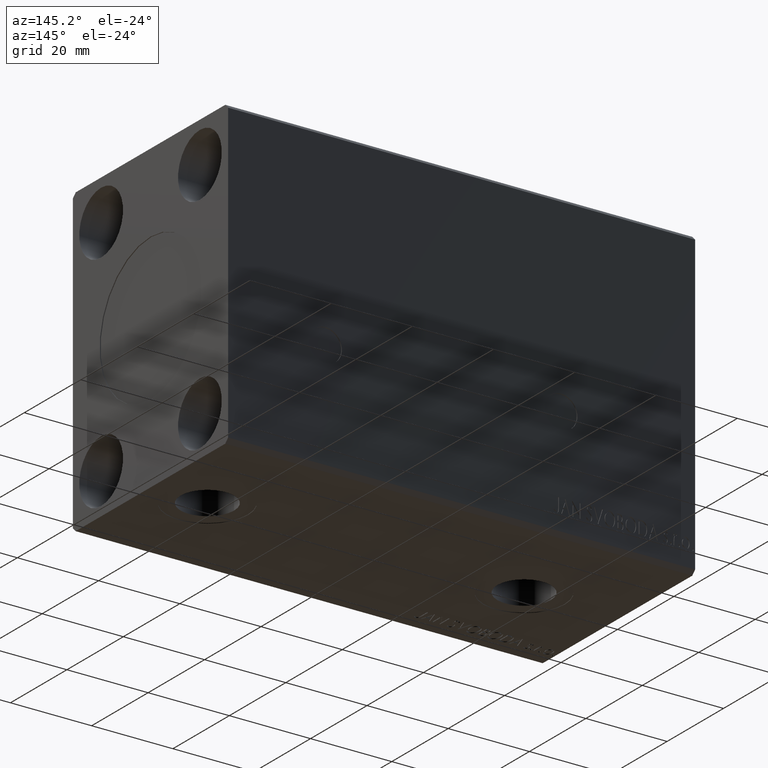
[diagram: clean part render]
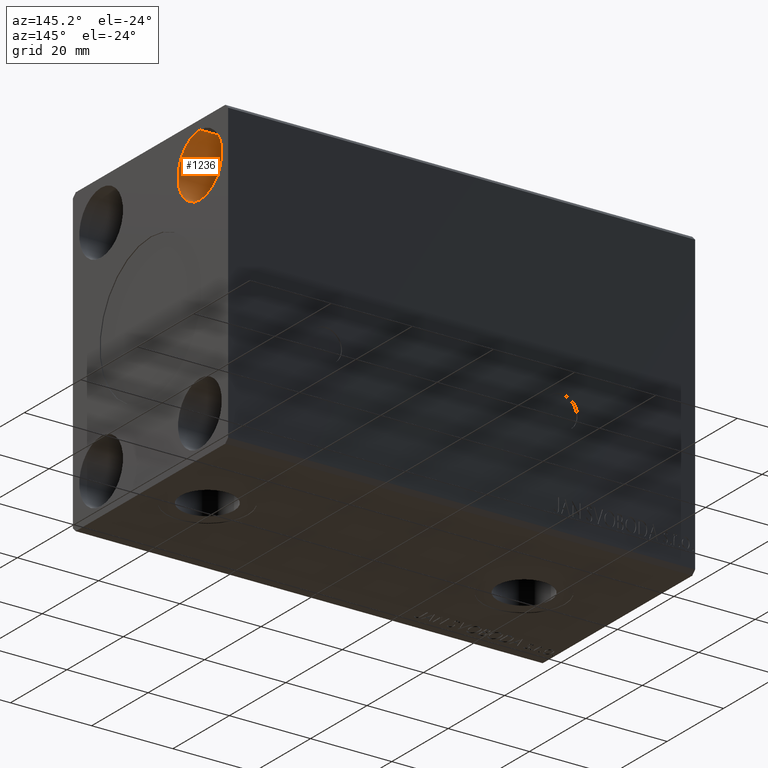
[diagram: same view with one face highlighted and labeled with its STEP entity id]
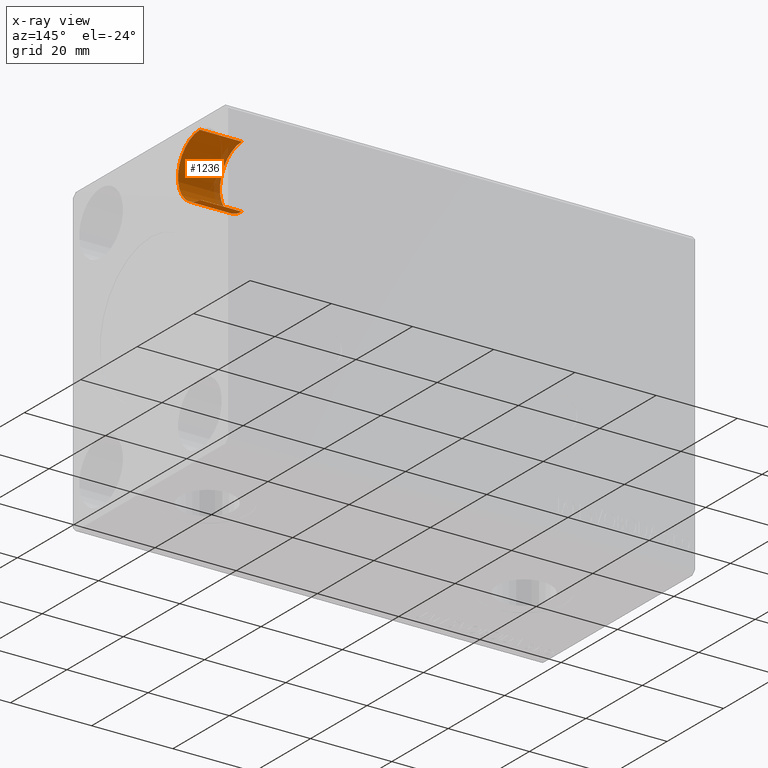
[diagram: x-ray of the same camera — body ghosted, the highlighted face saturated]
A machine part, auxiliary view. The second image highlights one B-rep face of the part: STEP entity #1236.
The next image is the same camera in x-ray: the body ghosted, the highlighted face saturated — about 10% of this face is hidden behind the body in this view.
In plain terms, the highlighted cylindrical surface (partial cylindrical patch) has radius 7.75 mm, axis along (1, -0, -0).
Its self-contained STEP definition (entity closure, byte-faithful):
#603 = VECTOR ( 'NONE', #22179, 1000.000000000000000 ) ;
#1236 = ADVANCED_FACE ( 'NONE', ( #31643 ), #5132, .F. ) ;
#3756 = AXIS2_PLACEMENT_3D ( 'NONE', #9518, #16196, #26112 ) ;
#3958 = ORIENTED_EDGE ( 'NONE', *, *, #35892, .F. ) ;
#4596 = EDGE_CURVE ( 'NONE', #31266, #37379, #33192, .T. ) ;
#4882 = CARTESIAN_POINT ( 'NONE',  ( 104.6700000000000017, 17.50000000000000000, 19.74999999999999645 ) ) ;
#5132 = CYLINDRICAL_SURFACE ( 'NONE', #13261, 7.750000000000003553 ) ;
#7107 = ORIENTED_EDGE ( 'NONE', *, *, #30402, .T. ) ;
#7675 = CARTESIAN_POINT ( 'NONE',  ( 115.0000000000000000, 17.50000000000000000, 19.74999999999999645 ) ) ;
#9518 = CARTESIAN_POINT ( 'NONE',  ( 115.0000000000000000, 17.50000000000000000, 27.50000000000000000 ) ) ;
#10675 = EDGE_CURVE ( 'NONE', #11137, #41506, #14769, .T. ) ;
#11137 = VERTEX_POINT ( 'NONE', #30774 ) ;
#11424 = DIRECTION ( 'NONE',  ( 0.000000000000000000, 0.000000000000000000, -1.000000000000000000 ) ) ;
#13261 = AXIS2_PLACEMENT_3D ( 'NONE', #18267, #37670, #27749 ) ;
#13400 = EDGE_LOOP ( 'NONE', ( #14899, #7107, #28783, #3958 ) ) ;
#14769 = CIRCLE ( 'NONE', #3756, 7.750000000000003553 ) ;
#14899 = ORIENTED_EDGE ( 'NONE', *, *, #4596, .F. ) ;
#16196 = DIRECTION ( 'NONE',  ( 1.000000000000000000, -0.000000000000000000, -0.000000000000000000 ) ) ;
#18267 = CARTESIAN_POINT ( 'NONE',  ( 104.6700000000000017, 17.50000000000000000, 27.50000000000000000 ) ) ;
#22179 = DIRECTION ( 'NONE',  ( 1.000000000000000000, -0.000000000000000000, -0.000000000000000000 ) ) ;
#24102 = LINE ( 'NONE', #40889, #27456 ) ;
#25422 = LINE ( 'NONE', #38568, #603 ) ;
#26112 = DIRECTION ( 'NONE',  ( 0.000000000000000000, 0.000000000000000000, -1.000000000000000000 ) ) ;
#27456 = VECTOR ( 'NONE', #34438, 1000.000000000000000 ) ;
#27749 = DIRECTION ( 'NONE',  ( 0.000000000000000000, 0.000000000000000000, -1.000000000000000000 ) ) ;
#28783 = ORIENTED_EDGE ( 'NONE', *, *, #10675, .T. ) ;
#30402 = EDGE_CURVE ( 'NONE', #31266, #11137, #25422, .T. ) ;
#30774 = CARTESIAN_POINT ( 'NONE',  ( 115.0000000000000000, 17.50000000000000000, 35.25000000000000000 ) ) ;
#30826 = CARTESIAN_POINT ( 'NONE',  ( 104.6700000000000017, 17.50000000000000000, 27.50000000000000000 ) ) ;
#31266 = VERTEX_POINT ( 'NONE', #33699 ) ;
#31468 = DIRECTION ( 'NONE',  ( 1.000000000000000000, -0.000000000000000000, -0.000000000000000000 ) ) ;
#31643 = FACE_OUTER_BOUND ( 'NONE', #13400, .T. ) ;
#33192 = CIRCLE ( 'NONE', #38008, 7.750000000000003553 ) ;
#33699 = CARTESIAN_POINT ( 'NONE',  ( 104.6700000000000017, 17.50000000000000000, 35.25000000000000000 ) ) ;
#34438 = DIRECTION ( 'NONE',  ( 1.000000000000000000, -0.000000000000000000, -0.000000000000000000 ) ) ;
#35892 = EDGE_CURVE ( 'NONE', #37379, #41506, #24102, .T. ) ;
#37379 = VERTEX_POINT ( 'NONE', #4882 ) ;
#37670 = DIRECTION ( 'NONE',  ( 1.000000000000000000, -0.000000000000000000, -0.000000000000000000 ) ) ;
#38008 = AXIS2_PLACEMENT_3D ( 'NONE', #30826, #31468, #11424 ) ;
#38568 = CARTESIAN_POINT ( 'NONE',  ( 104.6700000000000017, 17.50000000000000000, 35.25000000000000000 ) ) ;
#40889 = CARTESIAN_POINT ( 'NONE',  ( 104.6700000000000017, 17.50000000000000000, 19.74999999999999645 ) ) ;
#41506 = VERTEX_POINT ( 'NONE', #7675 ) ;